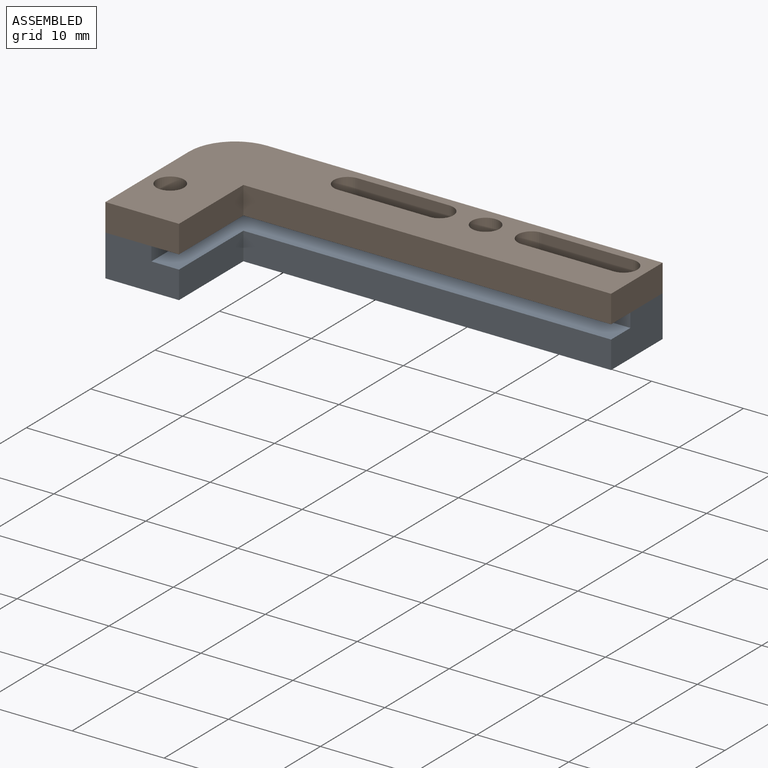
[diagram: assembled view]
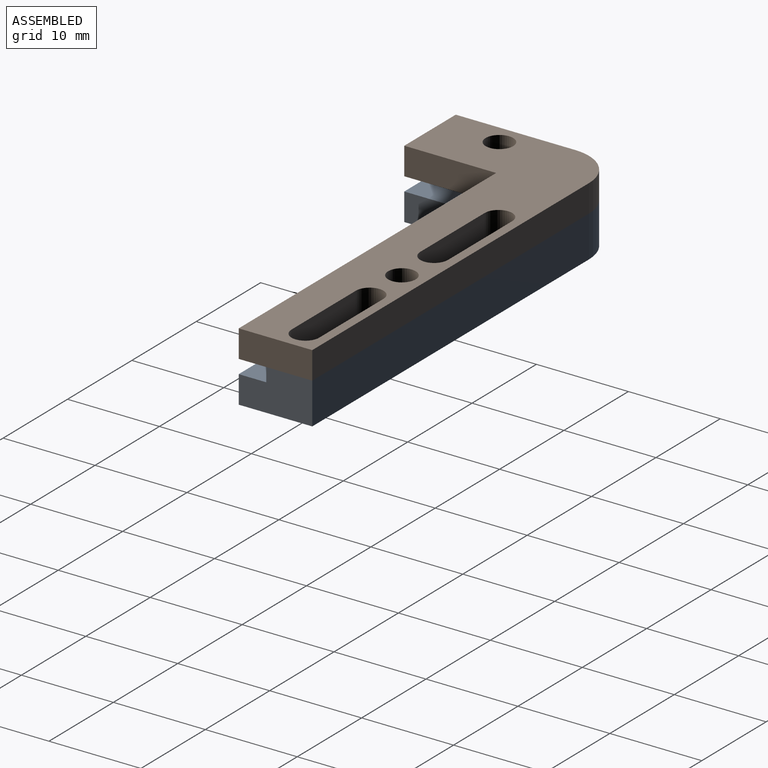
[diagram: assembled view, second angle]
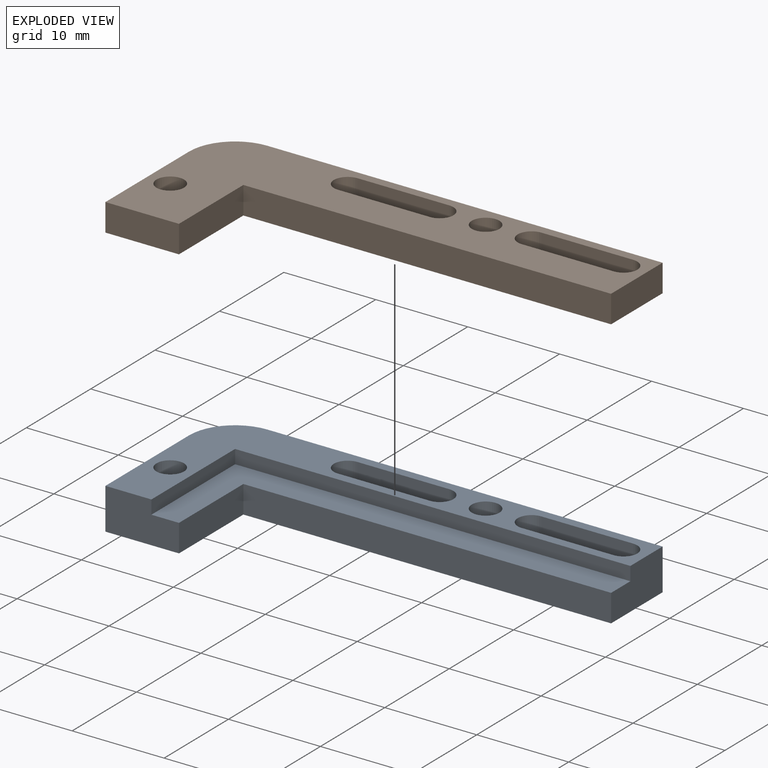
[diagram: exploded view]
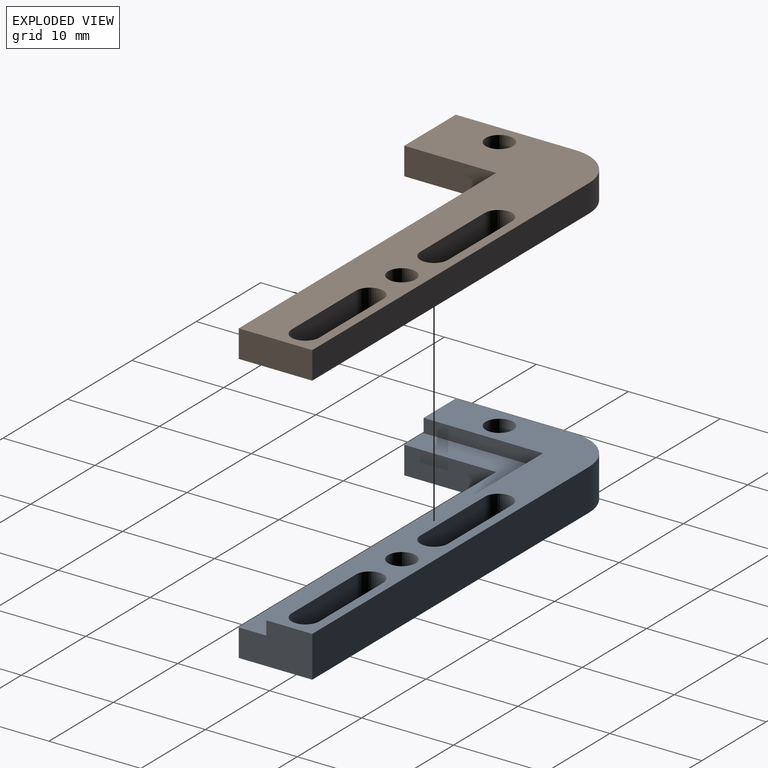
[diagram: exploded view, second angle]
ASSEMBLY  parts=2 mates=2
PART A: 22 faces, bbox 48x18x4.5 mm
  f0: plane 48x18mm, normal (0,0,1), area 211.4mm2, adj f2,f5,f6,f7,f8,f10,f11,f12
  f1: plane 48x18mm, normal (0,0,-1), area 370.4mm2, adj f2,f3,f4,f5,f6,f7,f11,f12
  f2: plane 8x4.5mm, normal (0,-1,0), area 31.5mm2, adj f0,f1,f3,f7,f8,f9
  f3: plane 10x3mm, normal (1,0,0), area 30mm2, adj f1,f2,f4,f9
  f4: plane 40x3mm, normal (0,-1,0), area 120mm2, adj f1,f3,f5,f9
  f5: plane 8x4.5mm, normal (1,0,0), area 31.5mm2, adj f0,f1,f4,f6,f9,f10
  f6: plane 43x4.5mm, normal (0,1,0), area 193.5mm2, adj f0,f1,f5,f21
  f7: plane 13x4.5mm, normal (-1,0,0), area 58.5mm2, adj f0,f1,f2,f21
  f8: plane 13x1.5mm, normal (1,0,0), area 19.5mm2, adj f0,f2,f9,f10
  f9: plane 43x13mm, normal (0,0,1), area 159mm2, adj f2,f3,f4,f5,f8,f10
  f10: plane 43x1.5mm, normal (0,-1,0), area 64.5mm2, adj f0,f5,f8,f9
  f11: plane 10x4.5mm, normal (0,-1,0), area 45mm2, adj f0,f1,f12,f14
  f12: cylinder r=1.5mm len=4.5mm, axis (0,0,1), area 21.2mm2, adj f0,f1,f11,f13
  f13: plane 10x4.5mm, normal (0,1,0), area 45mm2, adj f0,f1,f12,f14
  f14: cylinder r=1.5mm len=4.5mm, axis (0,0,1), area 21.2mm2, adj f0,f1,f11,f13
  f15: plane 10x4.5mm, normal (0,-1,0), area 45mm2, adj f0,f1,f16,f18
  f16: cylinder r=1.5mm len=4.5mm, axis (0,0,1), area 21.2mm2, adj f0,f1,f15,f17
  f17: plane 10x4.5mm, normal (0,1,0), area 45mm2, adj f0,f1,f16,f18
  f18: cylinder r=1.5mm len=4.5mm, axis (0,0,1), area 21.2mm2, adj f0,f1,f15,f17
  f19: cylinder r=1.5mm len=4.5mm, axis (0,0,1), area 42.4mm2, adj f0,f1
  f20: cylinder r=1.5mm len=4.5mm, axis (0,0,1), area 42.4mm2, adj f0,f1
  f21: cylinder r=5mm len=5mm, axis (0,0,-1), area 35.3mm2, adj f0,f1,f6,f7
PART B: 19 faces, bbox 48x18x3 mm
  f0: plane 48x18mm, normal (0,0,1), area 370.4mm2, adj f2,f3,f4,f5,f6,f7,f8,f9
  f1: plane 48x18mm, normal (0,0,-1), area 370.4mm2, adj f2,f3,f4,f5,f6,f7,f8,f9
  f2: plane 8x3mm, normal (0,-1,0), area 24mm2, adj f0,f1,f3,f7
  f3: plane 10x3mm, normal (1,0,0), area 30mm2, adj f0,f1,f2,f4
  f4: plane 40x3mm, normal (0,-1,0), area 120mm2, adj f0,f1,f3,f5
  f5: plane 8x3mm, normal (1,0,0), area 24mm2, adj f0,f1,f4,f6
  f6: plane 43x3mm, normal (0,1,0), area 129mm2, adj f0,f1,f5,f18
  f7: plane 13x3mm, normal (-1,0,0), area 39mm2, adj f0,f1,f2,f18
  f8: plane 10x3mm, normal (0,-1,0), area 30mm2, adj f0,f1,f9,f11
  f9: cylinder r=1.5mm len=3mm, axis (0,0,1), area 14.1mm2, adj f0,f1,f8,f10
  f10: plane 10x3mm, normal (0,1,0), area 30mm2, adj f0,f1,f9,f11
  f11: cylinder r=1.5mm len=3mm, axis (0,0,1), area 14.1mm2, adj f0,f1,f8,f10
  f12: plane 10x3mm, normal (0,-1,0), area 30mm2, adj f0,f1,f13,f15
  f13: cylinder r=1.5mm len=3mm, axis (0,0,1), area 14.1mm2, adj f0,f1,f12,f14
  f14: plane 10x3mm, normal (0,1,0), area 30mm2, adj f0,f1,f13,f15
  f15: cylinder r=1.5mm len=3mm, axis (0,0,1), area 14.1mm2, adj f0,f1,f12,f14
  f16: cylinder r=1.5mm len=3mm, axis (0,0,1), area 28.3mm2, adj f0,f1
  f17: cylinder r=1.5mm len=3mm, axis (0,0,1), area 28.3mm2, adj f0,f1
  f18: cylinder r=5mm len=5mm, axis (0,0,-1), area 23.6mm2, adj f0,f1,f6,f7
PLACE A t=(-2.71,14.74,3.1)mm
PLACE B t=(-2.71,14.74,7.6)mm
MATE planar A.f0 <-> B.f1  axis (0,0,1) through (-10.71,4.74,7.6)mm
MATE cylindrical A.f20 <-> B.f17  axis (0,0,1) through (-8.21,11.24,7.6)mm
